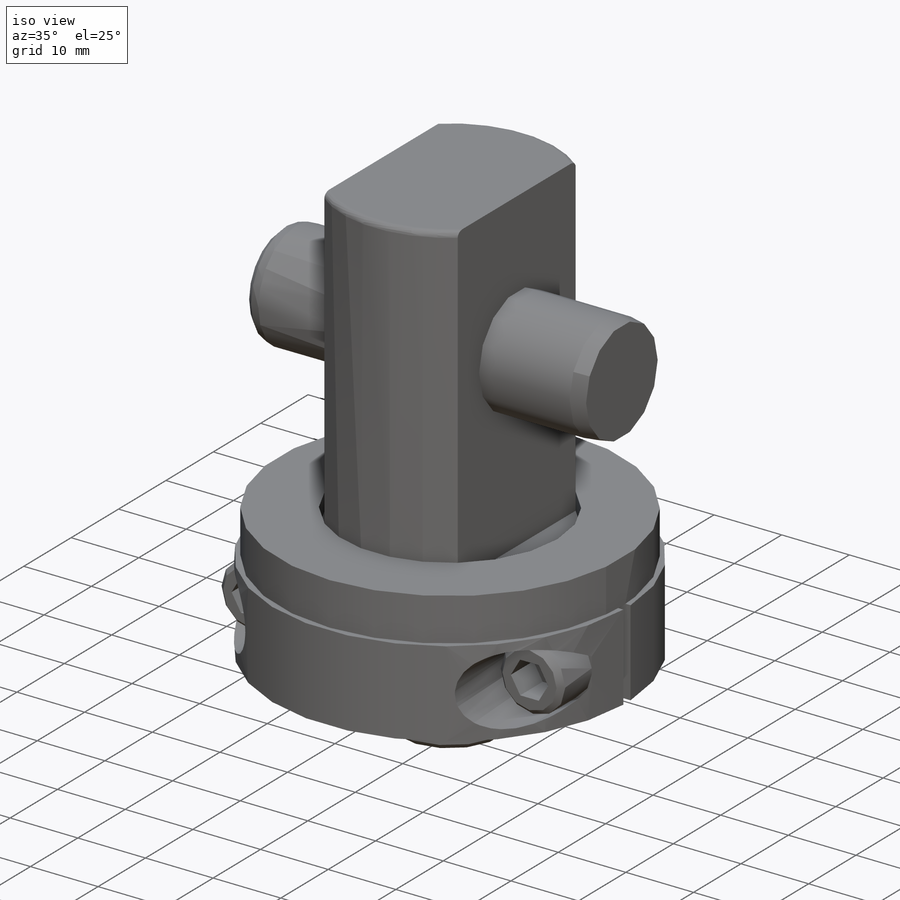
[diagram: iso view]
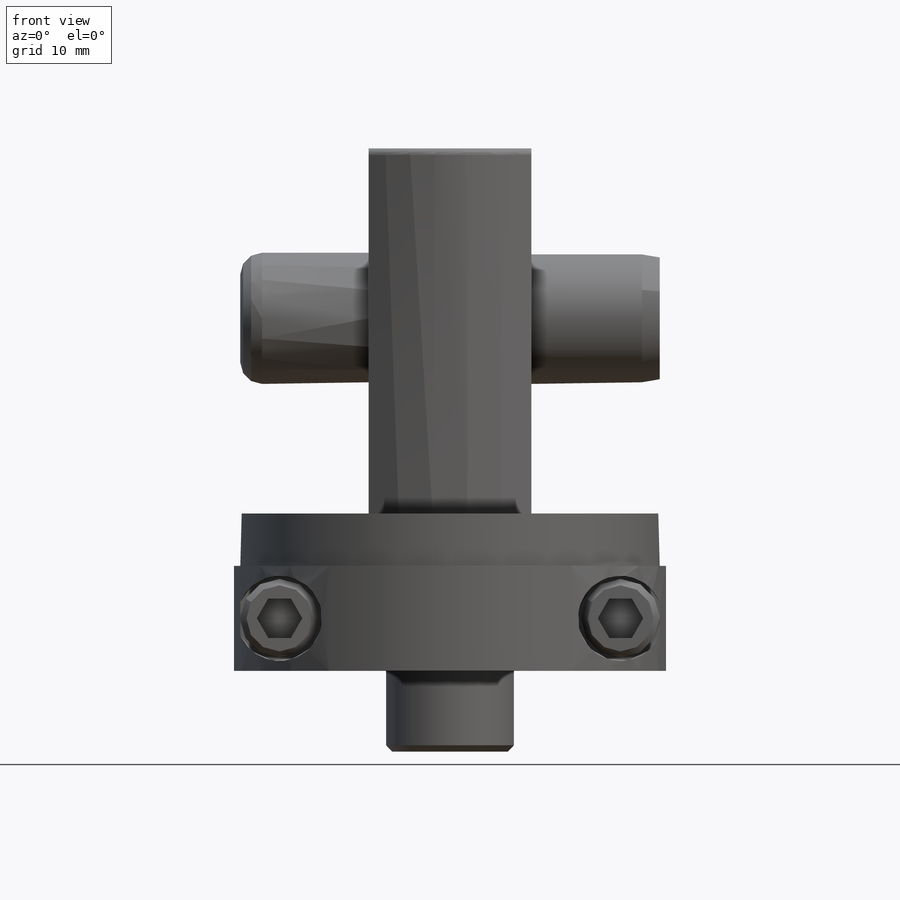
[diagram: front view]
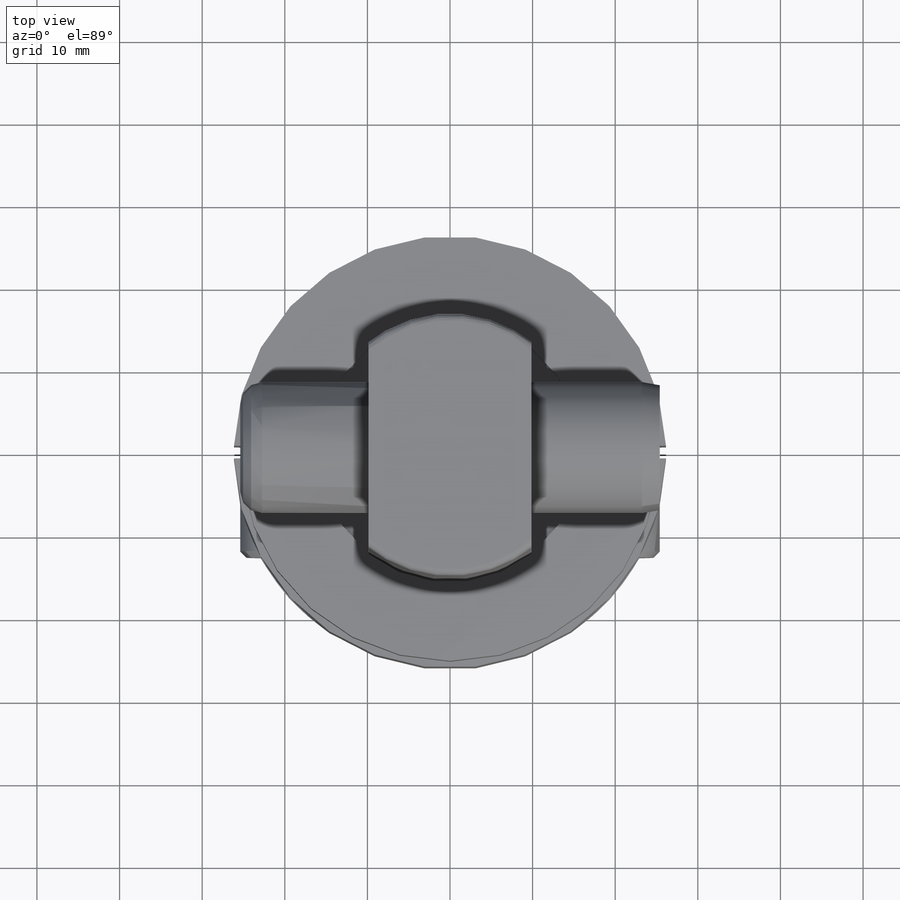
[diagram: top view]
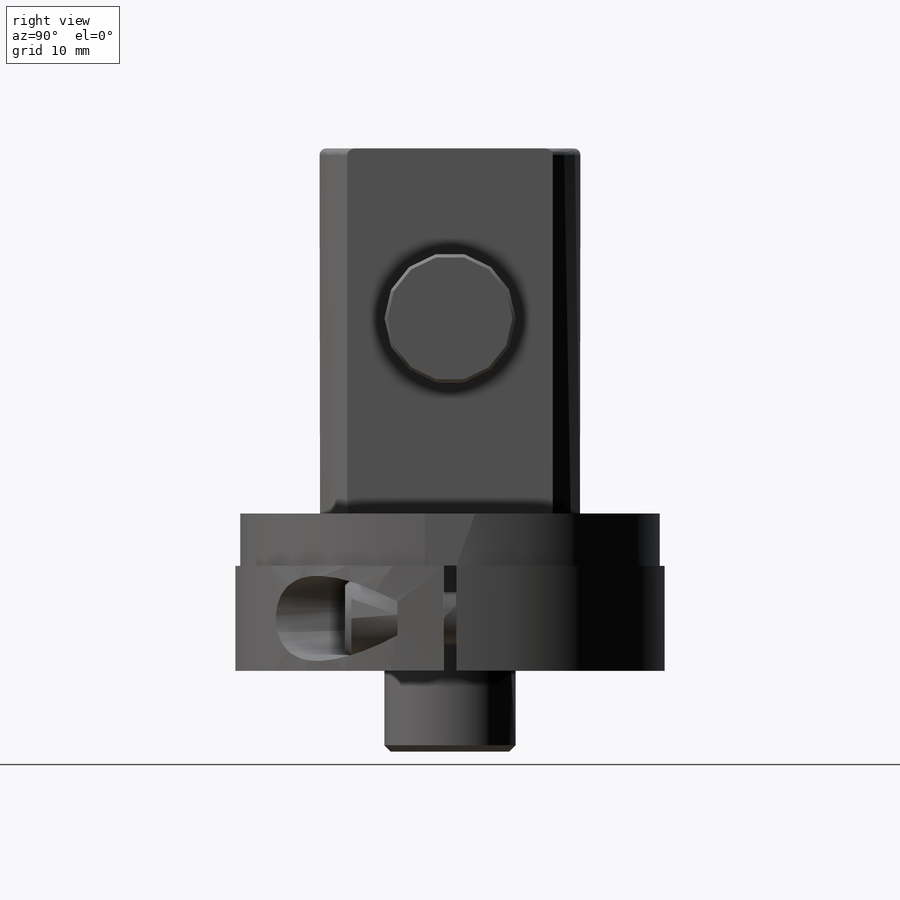
[diagram: right view]
SOLIDWORKS PART (.sldprt)
format: sldprt  version: not decoded by parser v0  size: 331,776 bytes
history: native  units: mm
features: sketch x10, extrude x5, cut_extrude x4, chamfer x3, fillet x2, material x1, revolve x1 (+13 scaffold rows collapsed)
feature tree (39):
  scaffold x13  (default folders/planes/origin — collapsed)
  material  "Alloy Steel"
  sketch  "Sketch1"  dims[D1=73.025mm D2=16.129mm D3=15.875mm D4=31.75mm]
  revolve  "Revolve1"  Angle=360deg
  fillet  "Fillet1"  Radius=0.7874mm
  sketch  "Sketch2"  dims[D1=19.7104mm D2=46.736mm]
  cut_extrude  "Cut-Extrude1"  Depth=0mm
  sketch  "Sketch3"  dims[D1=14.1732mm]
  cut_extrude  "Cut-Extrude2"  Depth=2.54mm
  chamfer  "Chamfer1"  Distance=0.762mm Angle=45deg
  sketch  "Sketch4"  dims[D1=~15.88008mm D2=36.322mm]
  extrude  "Extrude1"  Depth=50.8mm
  chamfer  "Chamfer2"  Distance=0.381mm Angle=80deg
  fillet  "Fillet2"  Radius=2.6416mm
  sketch  "Sketch5"  dims[D2=26.162mm D1=1.524mm]
  extrude  "Extrude2"  Depth=6.35mm
  sketch  "Sketch6"  dims[D1=10.3124mm D2=41.275mm D3=6.35mm]
  cut_extrude  "Cut-Extrude3"  [1 undecoded]
  sketch  "Sketch7"  dims[D1=9.525mm]
  extrude  "Extrude3"  Depth=6.35mm
  chamfer  "Chamfer3"  Distance=0.762mm Angle=45deg
  sketch  "Sketch8"  dims[D1=4.7625mm D2=4.7625mm]
  cut_extrude  "Cut-Extrude4"  Depth=4.7625mm
  sketch  "Sketch10"  dims[D1=6.35mm]
  extrude  "Extrude4"  Depth=0mm
  sketch  "Sketch11"  dims[D1=50.8mm D2=31.75mm]
  extrude  "Extrude5"  Depth=6.35mm
decode coverage: 24 of 25 modeling features carry decoded parameters
note: ~ marks probable driven/reference dimensions
note: 1 parameter value undecoded
note: suppression state not decoded; provenance and decode notes live in map.json
